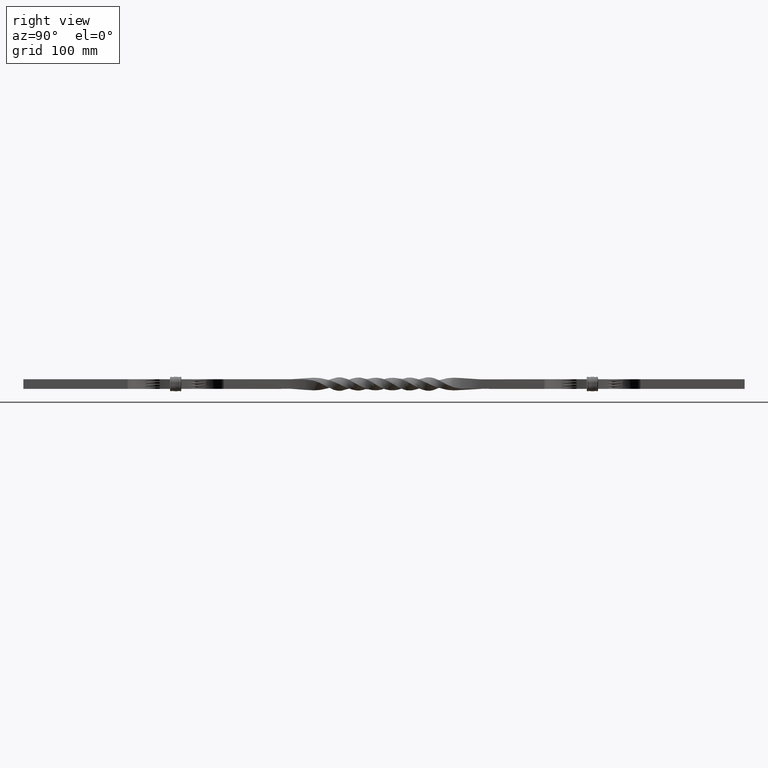
[diagram: clean part render]
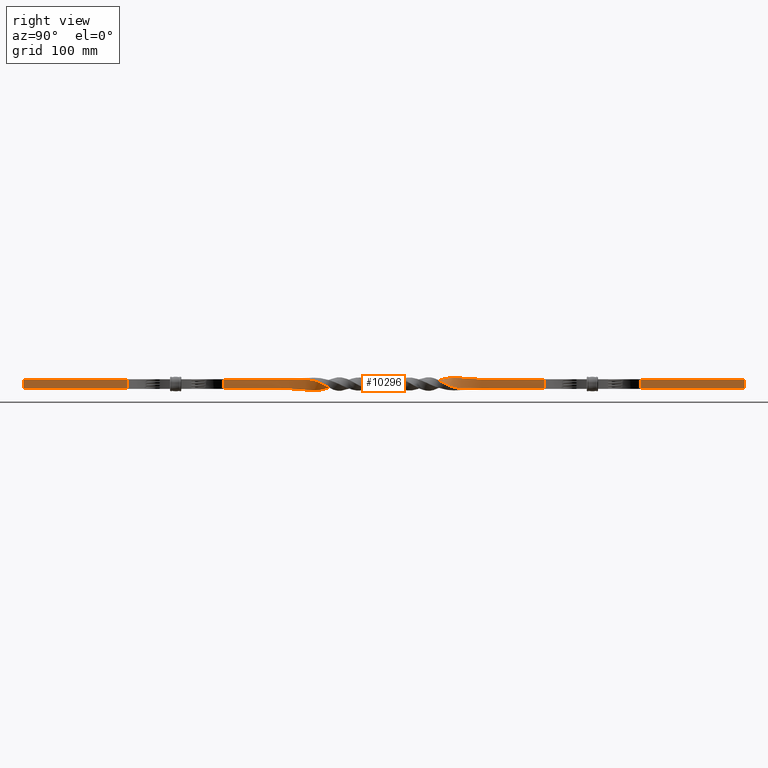
[diagram: same view with one face highlighted and labeled with its STEP entity id]
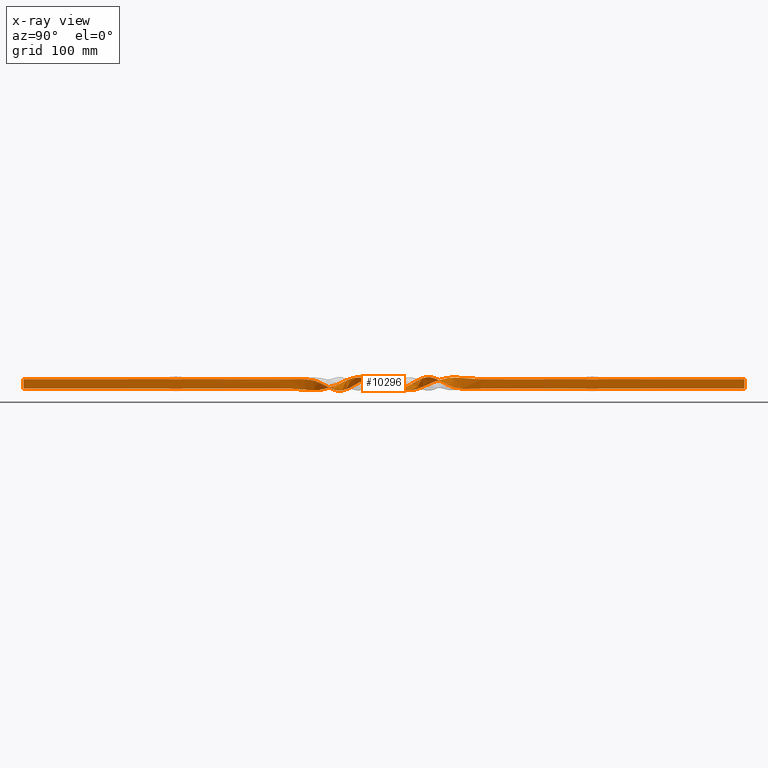
[diagram: x-ray of the same camera — body ghosted, the highlighted face saturated]
A machine part, right view. The second image highlights one B-rep face of the part: STEP entity #10296.
The next image is the same camera in x-ray: the body ghosted, the highlighted face saturated — about 0% of this face is hidden behind the body in this view.
In plain terms, the highlighted face is a freeform B-spline surface patch.
Its self-contained STEP definition (entity closure, byte-faithful):
#26 = CARTESIAN_POINT ( 'NONE',  ( 6.009263601721123393, 646.8728165821422635, 2.012219246501650627 ) ) ;
#216 = CARTESIAN_POINT ( 'NONE',  ( 6.003784774164357074, 253.1271834178583333, -6.020221256834648038 ) ) ;
#252 = CARTESIAN_POINT ( 'NONE',  ( 4.932763854690711547, 562.2856595492202132, -5.800247441439329243 ) ) ;
#322 = CARTESIAN_POINT ( 'NONE',  ( 6.000000159648423370, 834.3749999763623464, -1.999999954330806018 ) ) ;
#403 = CARTESIAN_POINT ( 'NONE',  ( 6.205485267938099625, 590.5783932836166059, -1.941218649400455076 ) ) ;
#593 = CARTESIAN_POINT ( 'NONE',  ( 6.020221256834648926, 646.8728165821406719, -6.003784774164356186 ) ) ;
#608 = EDGE_CURVE ( 'NONE', #4060, #13106, #18277, .T. ) ;
#725 = CARTESIAN_POINT ( 'NONE',  ( 6.002843459772035040, 759.3733596218468165, 6.015192010897478347 ) ) ;
#875 = CARTESIAN_POINT ( 'NONE',  ( 6.052753540043399383, 590.5783932836166059, 6.281851131885441752 ) ) ;
#1174 = CARTESIAN_POINT ( 'NONE',  ( 5.999999999999996447, 900.0000000000000000, -1.517883041479706208E-15 ) ) ;
#1486 = CARTESIAN_POINT ( 'NONE',  ( 6.000000159648447351, 65.62500002364483009, 1.999999954330809349 ) ) ;
#1560 = CARTESIAN_POINT ( 'NONE',  ( 7.917712261077909375, 532.7017317231116067, 4.529577538282596905 ) ) ;
#1635 = CARTESIAN_POINT ( 'NONE',  ( 0.9457429766359169987, 393.8022901579926724, -16.02030561610884263 ) ) ;
#1698 = CARTESIAN_POINT ( 'NONE',  ( 5.924533242761508056, 281.2418513736877230, 5.985875030647204831 ) ) ;
#1775 = CARTESIAN_POINT ( 'NONE',  ( 6.020221256834645374, 253.1271834178583333, 6.003784774164358851 ) ) ;
#1817 = CARTESIAN_POINT ( 'NONE',  ( 0.9457429766345005762, 506.1977098420063044, 16.02030561610880710 ) ) ;
#1850 = CARTESIAN_POINT ( 'NONE',  ( 6.000000000000001776, 899.9999999999992042, -2.000000000000000000 ) ) ;
#1940 = EDGE_CURVE ( 'NONE', #4060, #19491, #8209, .T. ) ;
#2000 = CARTESIAN_POINT ( 'NONE',  ( 5.221925050273585001, 562.2856595492197584, -2.222577009395978465 ) ) ;
#2343 = CARTESIAN_POINT ( 'NONE',  ( -14.82313183498101061, 478.0767954600213443, -6.130841793860736466 ) ) ;
#2358 = VECTOR ( 'NONE', #15129, 1000.000000000000000 ) ;
#2419 = CARTESIAN_POINT ( 'NONE',  ( 5.994581729899895350, 675.0005850451231026, -5.998985872695351773 ) ) ;
#2631 = CARTESIAN_POINT ( 'NONE',  ( 10.18612040258507179, 367.2982682768877112, 6.783508190324947229 ) ) ;
#2704 = CARTESIAN_POINT ( 'NONE',  ( 5.999999999999998224, 899.9999999999996589, 6.000000000000000000 ) ) ;
#3148 = CARTESIAN_POINT ( 'NONE',  ( 6.003784774164357074, 646.8728165821408993, 6.020221256834650703 ) ) ;
#3220 = CARTESIAN_POINT ( 'NONE',  ( 11.17307251028030990, 449.9999999999996021, -3.724357503426686922 ) ) ;
#3289 = CARTESIAN_POINT ( 'NONE',  ( 6.006959643480526800, 140.6266403781516487, -2.009180187340969148 ) ) ;
#3361 = CARTESIAN_POINT ( 'NONE',  ( 10.18612040258507179, 367.2982682768877112, 6.783508190324947229 ) ) ;
#3430 = CARTESIAN_POINT ( 'NONE',  ( 6.000000100317201657, 834.3749999763700771, 2.000000132324413649 ) ) ;
#3507 = CARTESIAN_POINT ( 'NONE',  ( 5.998985872695346444, 224.9994149548762721, -5.994581729899899791 ) ) ;
#3581 = CARTESIAN_POINT ( 'NONE',  ( 6.000000218979615774, 834.3749999763547294, -6.000000040986001260 ) ) ;
#3748 = CARTESIAN_POINT ( 'NONE',  ( 5.999999999999996447, 0.000000000000000000, -6.000000000000000000 ) ) ;
#4060 = VERTEX_POINT ( 'NONE', #5525 ) ;
#4442 = CARTESIAN_POINT ( 'NONE',  ( 6.015192010897474795, 140.6266403781508814, 6.002843459772032375 ) ) ;
#4872 = CARTESIAN_POINT ( 'NONE',  ( 6.129119403990780590, 309.4216067163823709, -2.170316241242440380 ) ) ;
#4940 = CARTESIAN_POINT ( 'NONE',  ( 6.000000218979624655, 65.62500002364458851, 6.000000040986004812 ) ) ;
#5012 = CARTESIAN_POINT ( 'NONE',  ( 5.999999999999998224, 899.9999999999994316, 5.999999999999998224 ) ) ;
#5088 = CARTESIAN_POINT ( 'NONE',  ( 11.17307251028020509, 449.9999999999993747, 11.17307251028035608 ) ) ;
#5158 = CARTESIAN_POINT ( 'NONE',  ( 5.996049777498383193, 224.9994149548763289, 2.001130005163597403 ) ) ;
#5229 = CARTESIAN_POINT ( 'NONE',  ( -4.709606554279918811, 506.1977098420073844, 10.99545140295074219 ) ) ;
#5233 = ORIENTED_EDGE ( 'NONE', *, *, #608, .T. ) ;
#5303 = CARTESIAN_POINT ( 'NONE',  ( 6.002843459772035040, 140.6266403781508814, -6.015192010897478347 ) ) ;
#5347 = CARTESIAN_POINT ( 'NONE',  ( 6.000000218979615774, 834.3749999763547294, -6.000000040986001260 ) ) ;
#5457 = CARTESIAN_POINT ( 'NONE',  ( 5.800247441439061902, 337.7143404507785363, -4.932763854690909611 ) ) ;
#5525 = CARTESIAN_POINT ( 'NONE',  ( 5.999999999999994671, 899.9999999999996589, -6.000000000000000000 ) ) ;
#5532 = CARTESIAN_POINT ( 'NONE',  ( 5.996049777498384969, 675.0005850451227616, -2.001130005163600512 ) ) ;
#6211 = VECTOR ( 'NONE', #9932, 1000.000000000000000 ) ;
#6234 = CARTESIAN_POINT ( 'NONE',  ( 5.924533242761508056, 281.2418513736877230, 5.985875030647204831 ) ) ;
#6602 = CARTESIAN_POINT ( 'NONE',  ( 5.511086245856349208, 337.7143404507787636, -1.355093422647584367 ) ) ;
#6673 = CARTESIAN_POINT ( 'NONE',  ( 5.800247441439328355, 562.2856595492202132, 4.932763854690712435 ) ) ;
#6752 = CARTESIAN_POINT ( 'NONE',  ( 5.999999999999998224, 0.000000000000000000, 5.999999999999998224 ) ) ;
#6816 = CARTESIAN_POINT ( 'NONE',  ( 5.965427768018650490, 618.7581486263113675, 1.954397151625256734 ) ) ;
#6885 = CARTESIAN_POINT ( 'NONE',  ( 6.783508190323913389, 532.7017317231113793, 10.18612040258585516 ) ) ;
#7192 = CARTESIAN_POINT ( 'NONE',  ( 6.015192010897474795, 759.3733596218468165, -6.002843459772035040 ) ) ;
#7267 = CARTESIAN_POINT ( 'NONE',  ( 0.9457429766345556432, 506.1977098420065317, 16.02030561610882486 ) ) ;
#7884 = CARTESIAN_POINT ( 'NONE',  ( 6.783508190323913389, 532.7017317231113793, 10.18612040258585516 ) ) ;
#8209 = B_SPLINE_CURVE_WITH_KNOTS ( 'NONE', 3,
 ( #20803, #5347, #19620, #2419, #593, #12684, #21326, #16193, #12222, #1817, #2343, #15744, #19162, #10551, #9188, #12296, #8803, #12754, #216, #19689, #14486, #17866, #10476 ),
 .UNSPECIFIED., .F., .F.,
 ( 4, 1, 1, 1, 1, 1, 1, 1, 1, 1, 1, 1, 1, 1, 1, 1, 1, 1, 1, 1, 4 ),
 ( 0.000000000000000000, 0.2150539006143591392, 0.2457758864164102386, 0.2764978722184615600, 0.3072198580205128815, 0.3379418438225643140, 0.3687168302277795684, 0.4004128416727378292, 0.4330298781574392075, 0.4665149390787197703, 0.5000000000000004441, 0.5334850609212808958, 0.5669701218425615696, 0.5995871583272629479, 0.6312831697722209867, 0.6620581561774361301, 0.6927801419794874516, 0.7235021277815387730, 0.7542241135835899835, 0.7849460993856411939, 1.000000000000000000 ),
 .UNSPECIFIED. ) ;
#8325 = CARTESIAN_POINT ( 'NONE',  ( -10.36495608519392242, 393.8022901579927861, -5.970597189793566351 ) ) ;
#8396 = CARTESIAN_POINT ( 'NONE',  ( 5.985875030647223483, 618.7581486263111401, 5.924533242761494733 ) ) ;
#8470 = CARTESIAN_POINT ( 'NONE',  ( -16.02030561610882842, 506.1977098420065317, 0.9457429766345495370 ) ) ;
#8543 = CARTESIAN_POINT ( 'NONE',  ( 4.932763854690906058, 337.7143404507785363, 5.800247441439062790 ) ) ;
#8614 = CARTESIAN_POINT ( 'NONE',  ( 5.944980505390077496, 281.2418513736880641, 2.015738939510965277 ) ) ;
#8803 = CARTESIAN_POINT ( 'NONE',  ( 6.052753540043465996, 309.4216067163823709, -6.281851131885392014 ) ) ;
#8841 = CARTESIAN_POINT ( 'NONE',  ( 5.944980505390072167, 618.7581486263109127, -2.015738939510985261 ) ) ;
#8916 = CARTESIAN_POINT ( 'NONE',  ( 11.17307251028035253, 449.9999999999993747, -11.17307251028020865 ) ) ;
#9188 = CARTESIAN_POINT ( 'NONE',  ( 6.783508190324949005, 367.2982682768875975, -10.18612040258506468 ) ) ;
#9478 = CARTESIAN_POINT ( 'NONE',  ( 5.999999999999998224, 899.9999999999996589, 6.000000000000000000 ) ) ;
#9553 = CARTESIAN_POINT ( 'NONE',  ( 5.999999999999998224, 0.000000000000000000, 6.000000000000000000 ) ) ;
#9932 = DIRECTION ( 'NONE',  ( 4.336808689942017736E-16, 0.000000000000000000, 1.000000000000000000 ) ) ;
#10150 = CARTESIAN_POINT ( 'NONE',  ( 6.205485267938084526, 309.4216067163825983, 1.941218649400514806 ) ) ;
#10224 = CARTESIAN_POINT ( 'NONE',  ( 6.000000000000001776, 0.000000000000000000, 2.000000000000000000 ) ) ;
#10268 = EDGE_CURVE ( 'NONE', #19491, #21912, #13245, .T. ) ;
#10292 = CARTESIAN_POINT ( 'NONE',  ( 5.965427768018640720, 281.2418513736877230, -1.954397151625269613 ) ) ;
#10296 = ADVANCED_FACE ( 'NONE', ( #16451 ), #16911, .T. ) ;
#10363 = CARTESIAN_POINT ( 'NONE',  ( 6.014742429277888824, 253.1271834178585607, 1.995782763831360773 ) ) ;
#10476 = CARTESIAN_POINT ( 'NONE',  ( 5.999999999999994671, 0.000000000000000000, -6.000000000000000000 ) ) ;
#10551 = CARTESIAN_POINT ( 'NONE',  ( -16.02030561610885329, 393.8022901579925588, -0.9457429766359247703 ) ) ;
#10584 = CARTESIAN_POINT ( 'NONE',  ( -16.02030561610884263, 393.8022901579926724, -0.9457429766359130019 ) ) ;
#10663 = CARTESIAN_POINT ( 'NONE',  ( 6.783508190324943676, 367.2982682768877112, -10.18612040258507001 ) ) ;
#11143 = CARTESIAN_POINT ( 'NONE',  ( 6.020221256834645374, 253.1271834178583333, 6.003784774164358851 ) ) ;
#11225 = CARTESIAN_POINT ( 'NONE',  ( 5.800247441439328355, 562.2856595492202132, 4.932763854690712435 ) ) ;
#11384 = CARTESIAN_POINT ( 'NONE',  ( 6.000000040986008365, 834.3749999763547294, 6.000000218979621103 ) ) ;
#11823 = CARTESIAN_POINT ( 'NONE',  ( 9.051916331831703744, 367.2982682768883933, 1.126965326021611258 ) ) ;
#11896 = CARTESIAN_POINT ( 'NONE',  ( 5.221925050273629410, 337.7143404507791047, 2.222577009395739989 ) ) ;
#11968 = CARTESIAN_POINT ( 'NONE',  ( 5.511086245856454013, 562.2856595492204406, 1.355093422647366763 ) ) ;
#12109 = CARTESIAN_POINT ( 'NONE',  ( 6.006959643480523248, 759.3733596218490902, 2.009180187340971813 ) ) ;
#12185 = CARTESIAN_POINT ( 'NONE',  ( 6.020221256834650703, 646.8728165821408993, -6.003784774164357074 ) ) ;
#12222 = CARTESIAN_POINT ( 'NONE',  ( 10.18612040258586582, 532.7017317231113793, -6.783508190323917830 ) ) ;
#12296 = CARTESIAN_POINT ( 'NONE',  ( 5.800247441439061014, 337.7143404507785363, -4.932763854690909611 ) ) ;
#12331 = CARTESIAN_POINT ( 'NONE',  ( 9.051916331831883156, 532.7017317231111520, -1.126965326020662461 ) ) ;
#12412 = CARTESIAN_POINT ( 'NONE',  ( 6.014742429277889713, 646.8728165821413540, -1.995782763831353890 ) ) ;
#12490 = CARTESIAN_POINT ( 'NONE',  ( 6.011075827189000798, 759.3733596218490902, -1.996831636215526506 ) ) ;
#12511 = ORIENTED_EDGE ( 'NONE', *, *, #10268, .F. ) ;
#12684 = CARTESIAN_POINT ( 'NONE',  ( 5.924533242761488516, 618.7581486263111401, -5.985875030647221706 ) ) ;
#12754 = CARTESIAN_POINT ( 'NONE',  ( 5.985875030647203054, 281.2418513736877230, -5.924533242761509833 ) ) ;
#12965 = CARTESIAN_POINT ( 'NONE',  ( 0.9457429766359169987, 393.8022901579926724, -16.02030561610884263 ) ) ;
#13086 = EDGE_CURVE ( 'NONE', #13106, #21912, #18954, .T. ) ;
#13106 = VERTEX_POINT ( 'NONE', #2704 ) ;
#13115 = CARTESIAN_POINT ( 'NONE',  ( 5.998985872695348220, 675.0005850451232163, 5.994581729899896239 ) ) ;
#13245 = LINE ( 'NONE', #16622, #6211 ) ;
#13555 = CARTESIAN_POINT ( 'NONE',  ( 5.997517825096864819, 224.9994149548761584, -1.996725862368150306 ) ) ;
#13627 = CARTESIAN_POINT ( 'NONE',  ( 6.000000100317240737, 65.62500002364473062, -2.000000132324417201 ) ) ;
#13697 = CARTESIAN_POINT ( 'NONE',  ( 11.17307251028026016, 449.9999999999993747, 3.724357503426832583 ) ) ;
#13769 = CARTESIAN_POINT ( 'NONE',  ( -10.36495608519438427, 506.1977098420069865, 5.970597189792650639 ) ) ;
#13838 = CARTESIAN_POINT ( 'NONE',  ( 6.000000040986008365, 65.62500002364458851, -6.000000218979636202 ) ) ;
#13913 = CARTESIAN_POINT ( 'NONE',  ( 5.994581729899894462, 675.0005850451232163, -5.998985872695349997 ) ) ;
#14065 = CARTESIAN_POINT ( 'NONE',  ( 6.003784774164357074, 253.1271834178583333, -6.020221256834648038 ) ) ;
#14139 = CARTESIAN_POINT ( 'NONE',  ( 6.130841793859698186, 421.9232045399772915, 14.82313183498177089 ) ) ;
#14486 = CARTESIAN_POINT ( 'NONE',  ( 6.002843459772042145, 140.6266403781508245, -6.015192010897480124 ) ) ;
#14492 = CARTESIAN_POINT ( 'NONE',  ( 5.999999999999994671, 0.000000000000000000, -6.000000000000000000 ) ) ;
#14547 = CARTESIAN_POINT ( 'NONE',  ( 6.281851131885392014, 309.4216067163823709, 6.052753540043468661 ) ) ;
#14698 = CARTESIAN_POINT ( 'NONE',  ( 5.994581729899898015, 224.9994149548762721, 5.998985872695348220 ) ) ;
#15129 = DIRECTION ( 'NONE',  ( 4.336808689942017736E-16, -2.775557561562891351E-14, 1.000000000000000000 ) ) ;
#15170 = CARTESIAN_POINT ( 'NONE',  ( 5.999999999999998224, 0.000000000000000000, 6.000000000000000000 ) ) ;
#15200 = CARTESIAN_POINT ( 'NONE',  ( 6.000000000000001776, 0.000000000000000000, -2.000000000000000000 ) ) ;
#15352 = CARTESIAN_POINT ( 'NONE',  ( -14.82313183498177089, 421.9232045399772915, 6.130841793859697297 ) ) ;
#15421 = CARTESIAN_POINT ( 'NONE',  ( 6.015192010897474795, 140.6266403781508814, 6.002843459772032375 ) ) ;
#15557 = CARTESIAN_POINT ( 'NONE',  ( -14.82313183498102660, 478.0767954600214580, -6.130841793860774658 ) ) ;
#15744 = CARTESIAN_POINT ( 'NONE',  ( 11.17307251028033122, 449.9999999999993747, -11.17307251028023529 ) ) ;
#15785 = CARTESIAN_POINT ( 'NONE',  ( 10.18612040258585161, 532.7017317231113793, -6.783508190323916942 ) ) ;
#16193 = CARTESIAN_POINT ( 'NONE',  ( 4.932763854690706218, 562.2856595492200995, -5.800247441439327467 ) ) ;
#16324 = CARTESIAN_POINT ( 'NONE',  ( 6.130841793860779099, 478.0767954600214580, -14.82313183498102127 ) ) ;
#16451 = FACE_OUTER_BOUND ( 'NONE', #18315, .T. ) ;
#16622 = CARTESIAN_POINT ( 'NONE',  ( 5.999999999999996447, 0.000000000000000000, -1.517883041479706208E-15 ) ) ;
#16911 = B_SPLINE_SURFACE_WITH_KNOTS ( 'NONE', 3, 3, ( 
 ( #6752, #4940, #15421, #20418, #1775, #1698, #17217, #8543, #3361, #1635, #15352, #5088, #17002, #8470, #6885, #6673, #20557, #8396, #3148, #18753, #18825, #18967, #5012 ),
 ( #10224, #1486, #20488, #5158, #10363, #8614, #10150, #11896, #11823, #22289, #17143, #13697, #22219, #13769, #1560, #11968, #20694, #6816, #26, #16923, #12109, #3430, #18898 ),
 ( #15200, #13627, #3289, #13555, #20624, #10292, #4872, #6602, #18676, #8325, #22146, #3220, #19198, #5229, #12331, #2000, #403, #8841, #12412, #5532, #12490, #322, #1850 ),
 ( #3748, #13838, #5303, #3507, #14065, #17524, #20911, #5457, #10663, #10584, #14139, #8916, #15557, #7267, #15785, #252, #17293, #20760, #12185, #13913, #7192, #3581, #17600 ) ),
 .UNSPECIFIED., .F., .F., .F.,
 ( 4, 4 ),
 ( 4, 1, 1, 1, 1, 1, 1, 1, 1, 1, 1, 1, 1, 1, 1, 1, 1, 1, 1, 1, 4 ),
 ( 0.000000000000000000, 1.000000000000000000 ),
 ( 0.000000000000000000, 0.2150539006143588061, 0.2457758864164100443, 0.2764978722184612825, 0.3072198580205126039, 0.3379418438225638699, 0.3687168302277790133, 0.4004128416727371076, 0.4330298781574384304, 0.4665149390787190486, 0.4999999999999996114, 0.5334850609212801187, 0.5669701218425607925, 0.5995871583272621708, 0.6312831697722204316, 0.6620581561774356860, 0.6927801419794868965, 0.7235021277815384400, 0.7542241135835897614, 0.7849460993856408608, 1.000000000000000000 ),
 .UNSPECIFIED. ) ;
#16923 = CARTESIAN_POINT ( 'NONE',  ( 5.997517825096868371, 675.0005850451235574, 1.996725862368150306 ) ) ;
#17002 = CARTESIAN_POINT ( 'NONE',  ( 6.130841793860779099, 478.0767954600214580, -14.82313183498102127 ) ) ;
#17143 = CARTESIAN_POINT ( 'NONE',  ( -7.838473958701283273, 421.9232045399781441, 9.028271807567076479 ) ) ;
#17217 = CARTESIAN_POINT ( 'NONE',  ( 6.281851131885392014, 309.4216067163823709, 6.052753540043468661 ) ) ;
#17221 = ORIENTED_EDGE ( 'NONE', *, *, #13086, .T. ) ;
#17293 = CARTESIAN_POINT ( 'NONE',  ( 6.281851131885440864, 590.5783932836166059, -6.052753540043400271 ) ) ;
#17524 = CARTESIAN_POINT ( 'NONE',  ( 5.985875030647203054, 281.2418513736877230, -5.924533242761509833 ) ) ;
#17600 = CARTESIAN_POINT ( 'NONE',  ( 5.999999999999996447, 899.9999999999994316, -6.000000000000000000 ) ) ;
#17866 = CARTESIAN_POINT ( 'NONE',  ( 6.000000040985989713, 65.62500002364450324, -6.000000218979623767 ) ) ;
#18148 = CARTESIAN_POINT ( 'NONE',  ( 6.000000218979624655, 65.62500002364458851, 6.000000040986004812 ) ) ;
#18231 = CARTESIAN_POINT ( 'NONE',  ( 6.003784774164357074, 646.8728165821408993, 6.020221256834650703 ) ) ;
#18277 = LINE ( 'NONE', #1174, #2358 ) ;
#18315 = EDGE_LOOP ( 'NONE', ( #12511, #22202, #5233, #17221 ) ) ;
#18676 = CARTESIAN_POINT ( 'NONE',  ( 7.917712261078315272, 367.2982682768879386, -4.529577538281731819 ) ) ;
#18753 = CARTESIAN_POINT ( 'NONE',  ( 5.998985872695348220, 675.0005850451232163, 5.994581729899896239 ) ) ;
#18825 = CARTESIAN_POINT ( 'NONE',  ( 6.002843459772035040, 759.3733596218468165, 6.015192010897478347 ) ) ;
#18898 = CARTESIAN_POINT ( 'NONE',  ( 6.000000000000001776, 899.9999999999998863, 2.000000000000000000 ) ) ;
#18954 = B_SPLINE_CURVE_WITH_KNOTS ( 'NONE', 3,
 ( #9478, #11384, #725, #13115, #18231, #19900, #875, #11225, #7884, #19672, #16324, #21459, #21542, #12965, #2631, #19975, #14547, #6234, #11143, #14698, #4442, #18148, #9553 ),
 .UNSPECIFIED., .F., .F.,
 ( 4, 1, 1, 1, 1, 1, 1, 1, 1, 1, 1, 1, 1, 1, 1, 1, 1, 1, 1, 1, 4 ),
 ( 0.000000000000000000, 0.2150539006143591392, 0.2457758864164102386, 0.2764978722184615600, 0.3072198580205131035, 0.3379418438225643140, 0.3687168302277795684, 0.4004128416727378292, 0.4330298781574392075, 0.4665149390787198813, 0.5000000000000004441, 0.5334850609212808958, 0.5669701218425615696, 0.5995871583272629479, 0.6312831697722209867, 0.6620581561774361301, 0.6927801419794874516, 0.7235021277815387730, 0.7542241135835899835, 0.7849460993856411939, 1.000000000000000000 ),
 .UNSPECIFIED. ) ;
#18967 = CARTESIAN_POINT ( 'NONE',  ( 6.000000040986008365, 834.3749999763547294, 6.000000218979621103 ) ) ;
#19162 = CARTESIAN_POINT ( 'NONE',  ( 6.130841793859734601, 421.9232045399774051, 14.82313183498176734 ) ) ;
#19198 = CARTESIAN_POINT ( 'NONE',  ( -7.838473958700421740, 478.0767954600210032, -9.028271807567531226 ) ) ;
#19491 = VERTEX_POINT ( 'NONE', #14492 ) ;
#19620 = CARTESIAN_POINT ( 'NONE',  ( 6.015192010897473018, 759.3733596218474986, -6.002843459772032375 ) ) ;
#19672 = CARTESIAN_POINT ( 'NONE',  ( -16.02030561610882842, 506.1977098420065317, 0.9457429766345495370 ) ) ;
#19689 = CARTESIAN_POINT ( 'NONE',  ( 5.998985872695344668, 224.9994149548763005, -5.994581729899898903 ) ) ;
#19900 = CARTESIAN_POINT ( 'NONE',  ( 5.985875030647223483, 618.7581486263111401, 5.924533242761494733 ) ) ;
#19975 = CARTESIAN_POINT ( 'NONE',  ( 4.932763854690906058, 337.7143404507785363, 5.800247441439062790 ) ) ;
#20418 = CARTESIAN_POINT ( 'NONE',  ( 5.994581729899898015, 224.9994149548762721, 5.998985872695348220 ) ) ;
#20488 = CARTESIAN_POINT ( 'NONE',  ( 6.011075827189011456, 140.6266403781507677, 1.996831636215541383 ) ) ;
#20557 = CARTESIAN_POINT ( 'NONE',  ( 6.052753540043399383, 590.5783932836166059, 6.281851131885441752 ) ) ;
#20624 = CARTESIAN_POINT ( 'NONE',  ( 6.009263601721128722, 253.1271834178584470, -2.012219246501643077 ) ) ;
#20694 = CARTESIAN_POINT ( 'NONE',  ( 6.129119403990750392, 590.5783932836163785, 2.170316241242495003 ) ) ;
#20760 = CARTESIAN_POINT ( 'NONE',  ( 5.924533242761492069, 618.7581486263111401, -5.985875030647225259 ) ) ;
#20803 = CARTESIAN_POINT ( 'NONE',  ( 5.999999999999994671, 899.9999999999996589, -6.000000000000000000 ) ) ;
#20911 = CARTESIAN_POINT ( 'NONE',  ( 6.052753540043465996, 309.4216067163823709, -6.281851131885392014 ) ) ;
#21326 = CARTESIAN_POINT ( 'NONE',  ( 6.281851131885445305, 590.5783932836168333, -6.052753540043403824 ) ) ;
#21459 = CARTESIAN_POINT ( 'NONE',  ( 11.17307251028020509, 449.9999999999993747, 11.17307251028035608 ) ) ;
#21542 = CARTESIAN_POINT ( 'NONE',  ( -14.82313183498177089, 421.9232045399772915, 6.130841793859697297 ) ) ;
#21912 = VERTEX_POINT ( 'NONE', #15170 ) ;
#22146 = CARTESIAN_POINT ( 'NONE',  ( -0.8538160824207962074, 421.9232045399776325, 11.92570182127442813 ) ) ;
#22202 = ORIENTED_EDGE ( 'NONE', *, *, #1940, .F. ) ;
#22219 = CARTESIAN_POINT ( 'NONE',  ( -0.8538160824198229859, 478.0767954600216854, -11.92570182127428424 ) ) ;
#22289 = CARTESIAN_POINT ( 'NONE',  ( -4.709606554279011092, 393.8022901579922177, -10.99545140295122359 ) ) ;